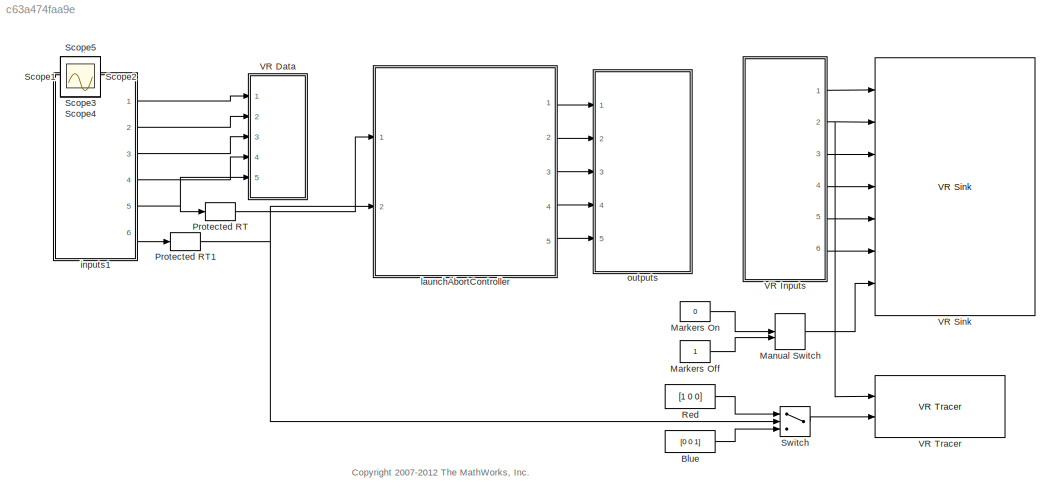
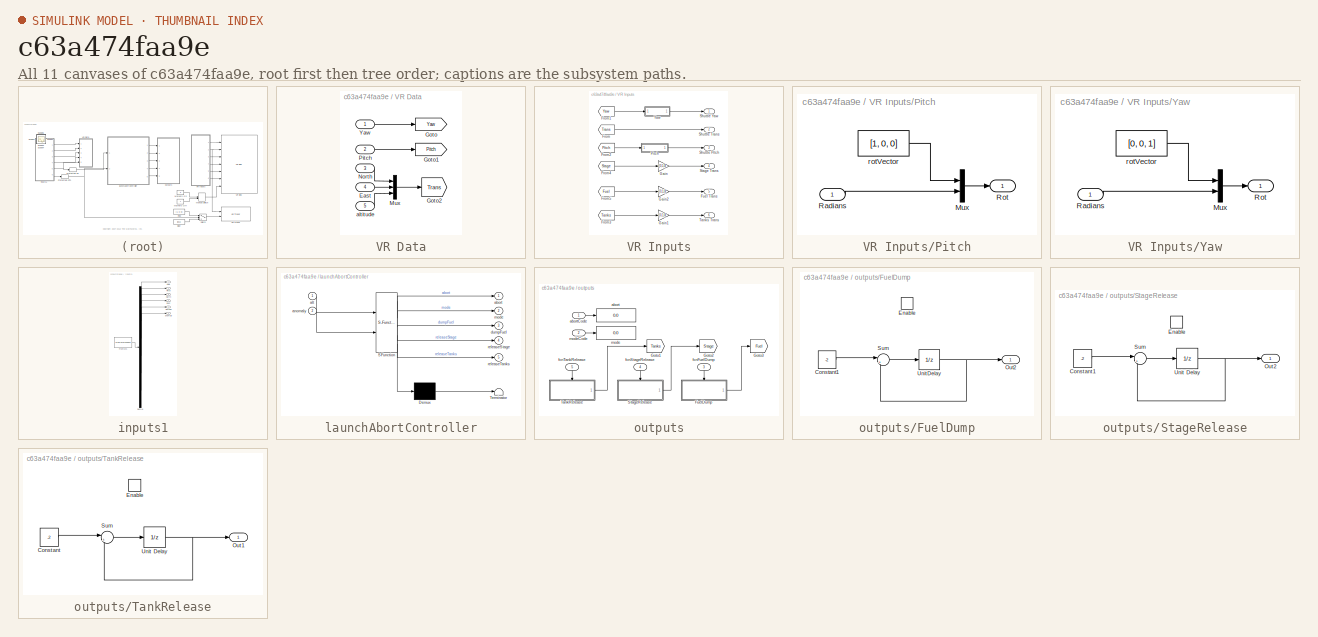
[diagram: thumbnail index - all 11 canvases of the model, root first then tree order]
MODEL slx_c63a474faa9e
KIND model
CONFIG AbsTol = auto
CONFIG EnableMultiTasking = off
CONFIG FixedStep = auto
CONFIG MaxStep = auto
CONFIG MinStep = auto
CONFIG RelTol = 1e-3
CONFIG SampleTimeConstraint = Unconstrained
CONFIG Solver = FixedStepDiscrete
CONFIG SolverName = FixedStepDiscrete
CONFIG StartTime = 0.0
CONFIG StopTime = 136
BLOCK [Constant] Blue
  Value = [0 0 1]
BLOCK [ManualSwitch] Manual Switch
BLOCK [Constant] Markers Off
BLOCK [Constant] Markers On
  Value = 0
BLOCK [RateTransition] Protected RT
  Deterministic = off
BLOCK [RateTransition] Protected RT1
  Deterministic = off
BLOCK [Constant] Red
  Value = [1 0 0]
BLOCK [Scope] Scope
  IOType = viewer
  NumInputPorts = 1
  Ports = []
  ScopeSpecificationString = C++SS(StrPVP('Location','[188, 365, 512, 604]'),StrPVP('Open','off'),MxPVP('AxesTitles',53,'struct(''axes1'',''%<SignalLabel>'')'),StrPVP('ShowDataMarkers','off'),StrPVP('ShowLegends','off'),StrPVP('MaxDataPoints','7500'),StrPVP('LimitDataPoints','on'),StrPVP('DataFormat','Array'),StrPVP('Decimation','1'),StrPVP('BlockParamSampleInput','off'))
BLOCK [Scope] Scope1
  IOType = viewer
  NumInputPorts = 1
  Ports = []
  ScopeSpecificationString = C++SS(StrPVP('Location','[188, 365, 512, 604]'),StrPVP('Open','off'),MxPVP('AxesTitles',53,'struct(''axes1'',''%<SignalLabel>'')'),StrPVP('ShowDataMarkers','off'),StrPVP('ShowLegends','off'),StrPVP('SaveName','ScopeData1'),StrPVP('MaxDataPoints','7500'),StrPVP('LimitDataPoints','on'),StrPVP('DataFormat','Array'),StrPVP('Decimation','1'),StrPVP('BlockParamSampleInput','off'))
BLOCK [Scope] Scope2
  IOType = viewer
  NumInputPorts = 1
  Ports = []
  ScopeSpecificationString = C++SS(StrPVP('Location','[837, 689, 1161, 928]'),StrPVP('Open','off'),MxPVP('AxesTitles',53,'struct(''axes1'',''%<SignalLabel>'')'),StrPVP('ShowDataMarkers','off'),StrPVP('ShowLegends','off'),StrPVP('YMin','-250'),StrPVP('YMax','2750'),StrPVP('SaveName','ScopeData2'),StrPVP('MaxDataPoints','7500'),StrPVP('LimitDataPoints','on'),StrPVP('DataFormat','Array'),StrPVP('Decimation','1'),StrPVP('BlockPar...<+22ch>
BLOCK [Scope] Scope3
  IOType = viewer
  NumInputPorts = 1
  Ports = []
  ScopeSpecificationString = C++SS(StrPVP('Location','[831, 395, 1155, 634]'),StrPVP('Open','off'),MxPVP('AxesTitles',53,'struct(''axes1'',''%<SignalLabel>'')'),StrPVP('ShowDataMarkers','off'),StrPVP('ShowLegends','off'),StrPVP('YMin','-250'),StrPVP('YMax','2750'),StrPVP('SaveName','ScopeData3'),StrPVP('MaxDataPoints','7500'),StrPVP('LimitDataPoints','on'),StrPVP('DataFormat','Array'),StrPVP('Decimation','1'),StrPVP('BlockPar...<+22ch>
BLOCK [Scope] Scope4
  IOType = viewer
  NumInputPorts = 1
  Ports = []
  ScopeSpecificationString = C++SS(StrPVP('Location','[827, 41, 1151, 280]'),StrPVP('Open','off'),MxPVP('AxesTitles',53,'struct(''axes1'',''%<SignalLabel>'')'),StrPVP('ShowDataMarkers','off'),StrPVP('ShowLegends','off'),StrPVP('YMin','-250'),StrPVP('YMax','2750'),StrPVP('SaveName','ScopeData4'),StrPVP('MaxDataPoints','7500'),StrPVP('LimitDataPoints','on'),StrPVP('DataFormat','Array'),StrPVP('Decimation','1'),StrPVP('BlockPara...<+21ch>
BLOCK [Scope] Scope5
  IOType = viewer
  NumInputPorts = 1
  Ports = []
  ScopeSpecificationString = C++SS(StrPVP('Location','[637, 488, 961, 727]'),StrPVP('Open','off'),MxPVP('AxesTitles',53,'struct(''axes1'',''%<SignalLabel>'')'),StrPVP('ShowDataMarkers','off'),StrPVP('ShowLegends','off'),StrPVP('YMin','0'),StrPVP('YMax','60'),StrPVP('SaveName','ScopeData5'),StrPVP('MaxDataPoints','7500'),StrPVP('LimitDataPoints','on'),StrPVP('DataFormat','Array'),StrPVP('Decimation','1'),StrPVP('BlockParamSamp...<+16ch>
BLOCK [Switch] Switch
  Criteria = u2 ~= 0
  InputSameDT = off
  SaturateOnIntegerOverflow = off
BLOCK [SubSystem] VR Data
  Ports = [5]
  RequestExecContextInheritance = off
  Variant = off
BLOCK [Inport] VR Data/East
  IconDisplay = Port number
  Port = 4
BLOCK [Goto] VR Data/Goto
  GotoTag = Yaw
  TagVisibility = global
BLOCK [Goto] VR Data/Goto1
  GotoTag = Pitch
  TagVisibility = global
BLOCK [Goto] VR Data/Goto2
  GotoTag = Trans
  TagVisibility = global
BLOCK [Mux] VR Data/Mux
  DisplayOption = bar
  Inputs = 3
  Ports = [3, 1]
BLOCK [Inport] VR Data/North
  IconDisplay = Port number
  Port = 3
BLOCK [Inport] VR Data/Pitch
  IconDisplay = Port number
  Port = 2
BLOCK [Inport] VR Data/Yaw
  IconDisplay = Port number
BLOCK [Inport] VR Data/altitude
  IconDisplay = Port number
  Port = 5
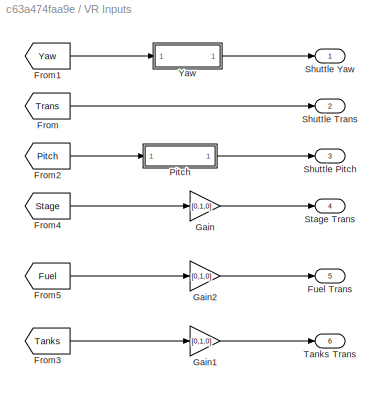
BLOCK [SubSystem] VR Inputs
  Ports = [0, 6]
  RequestExecContextInheritance = off
  Variant = off
BLOCK [From] VR Inputs/From
  CloseFcn = tagdialog Close
  GotoTag = Trans
  TagVisibility = global
BLOCK [From] VR Inputs/From1
  CloseFcn = tagdialog Close
  GotoTag = Yaw
  TagVisibility = global
BLOCK [From] VR Inputs/From2
  CloseFcn = tagdialog Close
  GotoTag = Pitch
  TagVisibility = global
BLOCK [From] VR Inputs/From3
  CloseFcn = tagdialog Close
  GotoTag = Tanks
  TagVisibility = global
BLOCK [From] VR Inputs/From4
  CloseFcn = tagdialog Close
  GotoTag = Stage
  TagVisibility = global
BLOCK [From] VR Inputs/From5
  CloseFcn = tagdialog Close
  GotoTag = Fuel
  TagVisibility = global
BLOCK [Outport] VR Inputs/Fuel Trans
  IconDisplay = Port number
  Port = 5
BLOCK [Gain] VR Inputs/Gain
  Gain = [0,1,0]
  OutDataTypeStr = Inherit: Inherit via internal rule
  ParamDataTypeStr = Inherit: Inherit via internal rule
  SaturateOnIntegerOverflow = off
BLOCK [Gain] VR Inputs/Gain1
  Gain = [0,1,0]
  OutDataTypeStr = Inherit: Inherit via internal rule
  ParamDataTypeStr = Inherit: Inherit via internal rule
  SaturateOnIntegerOverflow = off
BLOCK [Gain] VR Inputs/Gain2
  Gain = [0,1,0]
  OutDataTypeStr = Inherit: Inherit via internal rule
  ParamDataTypeStr = Inherit: Inherit via internal rule
  SaturateOnIntegerOverflow = off
BLOCK [SubSystem] VR Inputs/Pitch
  Ports = [1, 1]
  RequestExecContextInheritance = off
  Variant = off
BLOCK [Mux] VR Inputs/Pitch/Mux
  DisplayOption = bar
  Inputs = 2
  Ports = [2, 1]
BLOCK [Inport] VR Inputs/Pitch/Radians
  IconDisplay = Port number
BLOCK [Outport] VR Inputs/Pitch/Rot
  IconDisplay = Port number
BLOCK [Constant] VR Inputs/Pitch/rotVector
  Value = [1, 0, 0]
BLOCK [Outport] VR Inputs/Shuttle Pitch
  IconDisplay = Port number
  Port = 3
BLOCK [Outport] VR Inputs/Shuttle Trans
  IconDisplay = Port number
  Port = 2
BLOCK [Outport] VR Inputs/Shuttle Yaw
  IconDisplay = Port number
BLOCK [Outport] VR Inputs/Stage Trans
  IconDisplay = Port number
  Port = 4
BLOCK [Outport] VR Inputs/Tanks Trans
  IconDisplay = Port number
  Port = 6
BLOCK [SubSystem] VR Inputs/Yaw
  Ports = [1, 1]
  RequestExecContextInheritance = off
  Variant = off
BLOCK [Mux] VR Inputs/Yaw/Mux
  DisplayOption = bar
  Inputs = 2
  Ports = [2, 1]
BLOCK [Inport] VR Inputs/Yaw/Radians
  IconDisplay = Port number
BLOCK [Outport] VR Inputs/Yaw/Rot
  IconDisplay = Port number
BLOCK [Constant] VR Inputs/Yaw/rotVector
  Value = [0, 0, 1]
BLOCK [Reference] VR Sink  REF=vrlib/VR Sink
  InstantiateOnLoad = on
  Ports = [7]
  SourceBlock = vrlib/VR Sink
  SourceProductBaseCode = VR
  SourceProductName = Simulink 3D Animation
  SourceType = Virtual Reality Sink
BLOCK [Reference] VR Tracer  REF=vrlib/VR Tracer
  Ports = [2]
  SourceBlock = vrlib/VR Tracer
  SourceProductBaseCode = VR
  SourceProductName = Simulink 3D Animation
  SourceType = VR Tracer
BLOCK [SubSystem] inputs1
  ClipboardFcn = sigbuilder_block('clipboard');
  CloseFcn = sigbuilder_block('close');
  ContinueFcn = sigbuilder_block('continue')
  CopyFcn = sigbuilder_block('copy');
  DeleteFcn = sigbuilder_block('delete');
  LoadFcn = sigbuilder_block('load');
  MaskHideContents = on
  ModelCloseFcn = sigbuilder_block('modelClose');
  NameChangeFcn = sigbuilder_block('namechange');
  OpenFcn = sigbuilder_block('open',[81 93.75 561 399.75 ]);
  PauseFcn = sigbuilder_block('pause')
  Ports = [0, 6]
  PreSaveFcn = sigbuilder_block('preSave');
  RequestExecContextInheritance = off
  StartFcn = sigbuilder_block('start');
  StopFcn = sigbuilder_block('stop');
  Tag = STV Subsys
  Variant = off
BLOCK [Demux] inputs1/Demux
  Outputs = 6
  Ports = [1, 6]
  Tag = STV Demux
BLOCK [Outport] inputs1/East
  IconDisplay = Port number
  Port = 4
  Tag = STV Outport
BLOCK [FromWorkspace] inputs1/FromWs
  SampleTime = 0
  Tag = STV FromWs
  VariableName = tuvar
  ZeroCross = on
BLOCK [Outport] inputs1/North
  IconDisplay = Port number
  Port = 3
  Tag = STV Outport
BLOCK [Outport] inputs1/Pitch
  IconDisplay = Port number
  Port = 2
  Tag = STV Outport
BLOCK [Outport] inputs1/Yaw
  IconDisplay = Port number
  Tag = STV Outport
BLOCK [Outport] inputs1/altitude
  IconDisplay = Port number
  Port = 5
  Tag = STV Outport
BLOCK [Outport] inputs1/anomaly
  IconDisplay = Port number
  Port = 6
  Tag = STV Outport
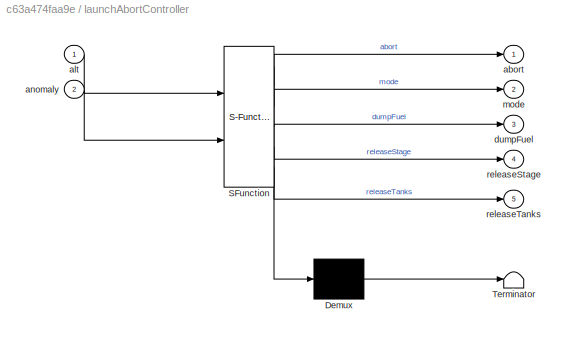
BLOCK [SubSystem] launchAbortController
  ErrorFcn = Stateflow.Translate.translate
  PermitHierarchicalResolution = ExplicitOnly
  Ports = [2, 5]
  RTWFcnNameOpts = Use subsystem name
  RTWFileNameOpts = Use subsystem name
  RTWSystemCode = Reusable function
  RequestExecContextInheritance = off
  SFBlockType = Chart
  TreatAsAtomicUnit = on
  Variant = off
BLOCK [Demux] launchAbortController/ Demux 
  Outputs = 1
  Ports = [1, 1]
BLOCK [S-Function] launchAbortController/ SFunction 
  EnableBusSupport = off
  FunctionName = sf_sfun
  PortCounts = [2 6]
  Ports = [2, 6]
  SFcnIsStateOwnerBlock = off
  SFunctionDeploymentMode = off
  Tag = Stateflow S-Function sf_launchabort 1
BLOCK [Terminator] launchAbortController/ Terminator 
BLOCK [Outport] launchAbortController/abort
  IconDisplay = Port number
BLOCK [Inport] launchAbortController/alt
  IconDisplay = Port number
BLOCK [Inport] launchAbortController/anomaly
  IconDisplay = Port number
  Port = 2
BLOCK [Outport] launchAbortController/dumpFuel
  IconDisplay = Port number
  Port = 3
BLOCK [Outport] launchAbortController/mode
  IconDisplay = Port number
  Port = 2
BLOCK [Outport] launchAbortController/releaseStage
  IconDisplay = Port number
  Port = 4
BLOCK [Outport] launchAbortController/releaseTanks
  IconDisplay = Port number
  Port = 5
BLOCK [SubSystem] outputs
  Ports = [5]
  RequestExecContextInheritance = off
  Variant = off
BLOCK [SubSystem] outputs/FuelDump
  Ports = [0, 1, 1]
  RTWSystemCode = Reusable function
  RequestExecContextInheritance = off
  TreatAsAtomicUnit = on
  Variant = off
BLOCK [Constant] outputs/FuelDump/Constant1
  Value = -2
BLOCK [EnablePort] outputs/FuelDump/Enable
  Ports = []
BLOCK [Outport] outputs/FuelDump/Out2
  IconDisplay = Port number
  InitialOutput = 0
BLOCK [Sum] outputs/FuelDump/Sum
  IconShape = round
  InputSameDT = off
  Inputs = |++
  OutDataTypeStr = Inherit: Inherit via internal rule
  Ports = [2, 1]
  SaturateOnIntegerOverflow = off
BLOCK [UnitDelay] outputs/FuelDump/Unit Delay
  SampleTime = -1
BLOCK [Goto] outputs/Goto1
  GotoTag = Tanks
  TagVisibility = global
BLOCK [Goto] outputs/Goto2
  GotoTag = Stage
  TagVisibility = global
BLOCK [Goto] outputs/Goto3
  GotoTag = Fuel
  TagVisibility = global
BLOCK [SubSystem] outputs/StageRelease
  Ports = [0, 1, 1]
  RTWSystemCode = Reusable function
  RequestExecContextInheritance = off
  TreatAsAtomicUnit = on
  Variant = off
BLOCK [Constant] outputs/StageRelease/Constant1
  Value = -2
BLOCK [EnablePort] outputs/StageRelease/Enable
  Ports = []
BLOCK [Outport] outputs/StageRelease/Out2
  IconDisplay = Port number
  InitialOutput = 0
BLOCK [Sum] outputs/StageRelease/Sum
  IconShape = round
  InputSameDT = off
  Inputs = |++
  OutDataTypeStr = Inherit: Inherit via internal rule
  Ports = [2, 1]
  SaturateOnIntegerOverflow = off
BLOCK [UnitDelay] outputs/StageRelease/Unit Delay
  SampleTime = -1
BLOCK [SubSystem] outputs/TankRelease
  Ports = [0, 1, 1]
  RTWSystemCode = Reusable function
  RequestExecContextInheritance = off
  TreatAsAtomicUnit = on
  Variant = off
BLOCK [Constant] outputs/TankRelease/Constant
  Value = -2
BLOCK [EnablePort] outputs/TankRelease/Enable
  Ports = []
BLOCK [Outport] outputs/TankRelease/Out1
  IconDisplay = Port number
  InitialOutput = 0
BLOCK [Sum] outputs/TankRelease/Sum
  IconShape = round
  InputSameDT = off
  Inputs = |++
  OutDataTypeStr = Inherit: Inherit via internal rule
  Ports = [2, 1]
  SaturateOnIntegerOverflow = off
BLOCK [UnitDelay] outputs/TankRelease/Unit Delay
  SampleTime = -1
BLOCK [Display] outputs/abort
  Decimation = 1
  Ports = [1]
BLOCK [Inport] outputs/abortCode
  IconDisplay = Port number
BLOCK [Inport] outputs/fcnFuelDump
  IconDisplay = Port number
  Port = 3
BLOCK [Inport] outputs/fcnStageRelease
  IconDisplay = Port number
  Port = 4
BLOCK [Inport] outputs/fcnTankRelease
  IconDisplay = Port number
  Port = 5
BLOCK [Display] outputs/mode
  Decimation = 1
  Ports = [1]
BLOCK [Inport] outputs/modeCode
  IconDisplay = Port number
  Port = 2
ANNOTATION (root): <copyright redacted>
LINE Blue:1 -> Switch:3
LINE Manual Switch:1 -> VR Sink:7
LINE Markers Off:1 -> Manual Switch:2
LINE Markers On:1 -> Manual Switch:1
NET Protected RT1:1 -> Switch:2, launchAbortController:2
LINE Protected RT:1 -> launchAbortController:1
LINE Red:1 -> Switch:1
LINE Switch:1 -> VR Tracer:2
LINE VR Data/East:1 -> VR Data/Mux:2
LINE VR Data/Mux:1 -> VR Data/Goto2:1
LINE VR Data/North:1 -> VR Data/Mux:1
LINE VR Data/Pitch:1 -> VR Data/Goto1:1
LINE VR Data/Yaw:1 -> VR Data/Goto:1
LINE VR Data/altitude:1 -> VR Data/Mux:3
LINE VR Inputs/From1:1 -> VR Inputs/Yaw:1
LINE VR Inputs/From2:1 -> VR Inputs/Pitch:1
LINE VR Inputs/From3:1 -> VR Inputs/Gain1:1
LINE VR Inputs/From4:1 -> VR Inputs/Gain:1
LINE VR Inputs/From5:1 -> VR Inputs/Gain2:1
LINE VR Inputs/From:1 -> VR Inputs/Shuttle Trans:1
LINE VR Inputs/Gain1:1 -> VR Inputs/Tanks Trans:1
LINE VR Inputs/Gain2:1 -> VR Inputs/Fuel Trans:1
LINE VR Inputs/Gain:1 -> VR Inputs/Stage Trans:1
LINE VR Inputs/Pitch:1 -> VR Inputs/Shuttle Pitch:1
LINE VR Inputs/Yaw:1 -> VR Inputs/Shuttle Yaw:1
LINE VR Inputs:1 -> VR Sink:1
NET VR Inputs:2 -> VR Sink:2, VR Tracer:1
LINE VR Inputs:3 -> VR Sink:3
LINE VR Inputs:4 -> VR Sink:4
LINE VR Inputs:5 -> VR Sink:5
LINE VR Inputs:6 -> VR Sink:6
LINE inputs1/Demux:1 -> inputs1/Yaw:1
LINE inputs1/Demux:2 -> inputs1/Pitch:1
LINE inputs1/Demux:3 -> inputs1/North:1
LINE inputs1/Demux:4 -> inputs1/East:1
LINE inputs1/Demux:5 -> inputs1/altitude:1
LINE inputs1/Demux:6 -> inputs1/anomaly:1
LINE inputs1/FromWs:1 -> inputs1/Demux:1
LINE inputs1:1 -> VR Data:1
LINE inputs1:2 -> VR Data:2
LINE inputs1:3 -> VR Data:3
LINE inputs1:4 -> VR Data:4
NET inputs1:5 -> Protected RT:1, VR Data:5
LINE inputs1:6 -> Protected RT1:1
LINE launchAbortController:1 -> outputs:1
LINE launchAbortController:2 -> outputs:2
LINE launchAbortController:3 -> outputs:3
LINE launchAbortController:4 -> outputs:4
LINE launchAbortController:5 -> outputs:5
LINE outputs/FuelDump/Constant1:1 -> outputs/FuelDump/Sum:1
LINE outputs/FuelDump/Sum:1 -> outputs/FuelDump/Unit Delay:1
NET outputs/FuelDump/Unit Delay:1 -> outputs/FuelDump/Out2:1, outputs/FuelDump/Sum:2
LINE outputs/FuelDump:1 -> outputs/Goto3:1
LINE outputs/StageRelease/Constant1:1 -> outputs/StageRelease/Sum:1
LINE outputs/StageRelease/Sum:1 -> outputs/StageRelease/Unit Delay:1
NET outputs/StageRelease/Unit Delay:1 -> outputs/StageRelease/Out2:1, outputs/StageRelease/Sum:2
LINE outputs/StageRelease:1 -> outputs/Goto2:1
LINE outputs/TankRelease/Constant:1 -> outputs/TankRelease/Sum:1
LINE outputs/TankRelease/Sum:1 -> outputs/TankRelease/Unit Delay:1
NET outputs/TankRelease/Unit Delay:1 -> outputs/TankRelease/Out1:1, outputs/TankRelease/Sum:2
LINE outputs/TankRelease:1 -> outputs/Goto1:1
LINE outputs/abortCode:1 -> outputs/abort:1
LINE outputs/fcnFuelDump:1 -> outputs/FuelDump:enable
LINE outputs/fcnStageRelease:1 -> outputs/StageRelease:enable
LINE outputs/fcnTankRelease:1 -> outputs/TankRelease:enable
LINE outputs/modeCode:1 -> outputs/mode:1
note: NET lines group one-source signal fan-out (src -> all destinations, sorted); 1:1 wires keep LINE
CHART launchAbortController states=12 transitions=18
  STATE_LABEL 'ModeLogic'
  STATE_LABEL 'RTLS\nentry:mode=1;'
  STATE_LABEL 'DRL\nentry:mode=2;'
  STATE_LABEL 'ATO\nentry:mode=4;'
  STATE_LABEL 'AOA\nentry:mode=3;'
  STATE_LABEL '[alt>10000 && !anomaly]'
  STATE_LABEL '[alt>100000 && !anomaly]'
  STATE_LABEL '[alt>400000 && !anomaly]'
  STATE_LABEL 'RTLS\nentry:mode=1;'
  STATE_LABEL 'DRL\nentry:mode=2;'
  STATE_LABEL 'ATO\nentry:mode=4;'
  STATE_LABEL 'AOA\nentry:mode=3;'
  STATE_LABEL 'Abort'
  STATE_LABEL 'Normal\nen: abort=NO_ABORT;'
  STATE_LABEL 'abortLogic\nen: abort = ABORT_STARTED;'
  STATE_LABEL 'FuelDump\ndumpFuel;\nex: abort=FUEL_DUMP_DONE;'
  STATE_LABEL 'TankRelease\nreleaseTanks;\nex: abort=TANK_RELEASE_DONE;'
  STATE_LABEL 'StageRelease\nreleaseStage;\nex: abort=STAGE_RELEASE_DONE;'
  STATE_LABEL '[in(ModeLogic.RTLS)]'
  STATE_LABEL 'after(10, tick)'
  STATE_LABEL '[anomaly]'
  STATE_LABEL '[in(ModeLogic.DRL)]'
  STATE_LABEL '[in(ModeLogic.AOA)]'
  STATE_LABEL 'after(10, tick)'
  STATE_LABEL 'abortComplete\nen: abort=ABORT_COMPLETE;'
  STATE_LABEL '[anomaly]'
  STATE_LABEL '[anomaly]'
  STATE_LABEL 'Normal\nen: abort=NO_ABORT;'
  STATE_LABEL 'abortLogic\nen: abort = ABORT_STARTED;'
  STATE_LABEL 'FuelDump\ndumpFuel;\nex: abort=FUEL_DUMP_DONE;'
  STATE_LABEL 'TankRelease\nreleaseTanks;\nex: abort=TANK_RELEASE_DONE;'
  STATE_LABEL 'StageRelease\nreleaseStage;\nex: abort=STAGE_RELEASE_DONE;'
  STATE_LABEL '[in(ModeLogic.RTLS)]'
  STATE_LABEL 'after(10, tick)'
  STATE_LABEL '[anomaly]'
  STATE_LABEL '[in(ModeLogic.DRL)]'
  STATE_LABEL '[in(ModeLogic.AOA)]'
  STATE_LABEL 'after(10, tick)'
  STATE_LABEL 'FuelDump\ndumpFuel;\nex: abort=FUEL_DUMP_DONE;'
  STATE_LABEL 'TankRelease\nreleaseTanks;\nex: abort=TANK_RELEASE_DONE;'
